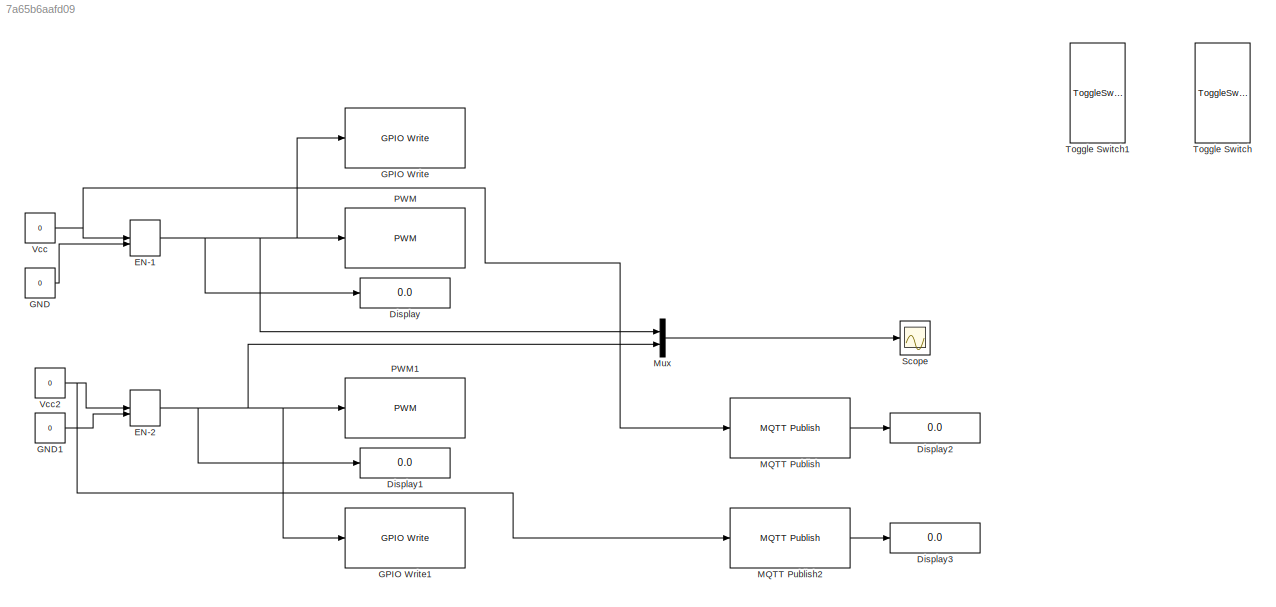
MODEL slx_7a65b6aafd09
KIND model
CONFIG AbsTol = auto
CONFIG EnableMultiTasking = on
CONFIG FixedStep = 0.02
CONFIG MaxStep = auto
CONFIG MinStep = auto
CONFIG RelTol = 1e-3
CONFIG SampleTimeConstraint = Unconstrained
CONFIG Solver = FixedStepAuto
CONFIG SolverName = FixedStepAuto
CONFIG StartTime = 0.0
CONFIG StopTime = inf
BLOCK [Display] Display
  Decimation = 1
  Ports = [1]
BLOCK [Display] Display1
  Decimation = 1
  Ports = [1]
BLOCK [Display] Display2
  Decimation = 1
  Format = decimal (Stored Integer)
  Ports = [1]
BLOCK [Display] Display3
  Decimation = 1
  Format = decimal (Stored Integer)
  Ports = [1]
BLOCK [ManualSwitch] EN-1
BLOCK [ManualSwitch] EN-2
BLOCK [Constant] GND
  Value = 0
BLOCK [Constant] GND1 
  Value = 0
BLOCK [Reference] GPIO Write  REF=embdlinuxlib/GPIO Write
  Ports = [1]
  SourceBlock = embdlinuxlib/GPIO Write
  SourceProductBaseCode = SC_BEAGLEBONE_BLUE
  SourceProductName = Simulink Coder Support Package for BeagleBone Blue Hardware
  SourceType = GPIO Write
BLOCK [Reference] GPIO Write1  REF=embdlinuxlib/GPIO Write
  Ports = [1]
  SourceBlock = embdlinuxlib/GPIO Write
  SourceProductBaseCode = SC_BEAGLEBONE_BLUE
  SourceProductName = Simulink Coder Support Package for BeagleBone Blue Hardware
  SourceType = GPIO Write
BLOCK [Reference] MQTT Publish  REF=embdlinuxlib/MQTT Publish
  Ports = [1, 1]
  SourceBlock = embdlinuxlib/MQTT Publish
  SourceProductBaseCode = SC_BEAGLEBONE_BLUE
  SourceProductName = Simulink Coder Support Package for BeagleBone Blue Hardware
  SourceType = codertarget.linux.blocks.MQTTPublish
BLOCK [Reference] MQTT Publish2  REF=embdlinuxlib/MQTT Publish
  Ports = [1, 1]
  SourceBlock = embdlinuxlib/MQTT Publish
  SourceProductBaseCode = SC_BEAGLEBONE_BLUE
  SourceProductName = Simulink Coder Support Package for BeagleBone Blue Hardware
  SourceType = codertarget.linux.blocks.MQTTPublish
BLOCK [Mux] Mux
  DisplayOption = bar
  Inputs = 2
  Ports = [2, 1]
BLOCK [Reference] PWM  REF=raspberrypilib/PWM
  Ports = [1]
  SourceBlock = raspberrypilib/PWM
  SourceProductBaseCode = RASPPI
  SourceProductName = Simulink Support Package for Raspberry Pi Hardware
  SourceType = raspi.internal.PWMBlock
BLOCK [Reference] PWM1  REF=raspberrypilib/PWM
  Ports = [1]
  SourceBlock = raspberrypilib/PWM
  SourceProductBaseCode = RASPPI
  SourceProductName = Simulink Support Package for Raspberry Pi Hardware
  SourceType = raspi.internal.PWMBlock
BLOCK [Scope] Scope
  Floating = off
  NumInputPorts = 1
  Ports = [1]
  ScopeSpecificationString = Simulink.scopes.TimeScopeBlockCfg('CurrentConfiguration', extmgr.ConfigurationSet(extmgr.Configuration('Core','General UI',true),extmgr.Configuration('Core','Source UI',true),extmgr.Configuration('Sources','WiredSimulink',true),extmgr.Configuration('Visuals','Time Domain',true,'SerializedDisplays',{struct('MinYLimReal','-5','MaxYLimReal','1.5','YLabelReal','','MinYLimMag','0.00000','MaxYLimMag','1...<+1559ch>
BLOCK [ToggleSwitchBlock] Toggle Switch
BLOCK [ToggleSwitchBlock] Toggle Switch1
BLOCK [Constant] Vcc
  OutDataTypeStr = uint8
  Value = 0
BLOCK [Constant] Vcc2
  OutDataTypeStr = uint8
  Value = 0
NET EN-1:1 -> Display:1, GPIO Write:1, Mux:1, PWM:1
NET EN-2:1 -> Display1:1, GPIO Write1:1, Mux:2, PWM1:1
LINE GND1 :1 -> EN-2:2
LINE GND:1 -> EN-1:2
LINE MQTT Publish2:1 -> Display3:1
LINE MQTT Publish:1 -> Display2:1
LINE Mux:1 -> Scope:1
NET Vcc2:1 -> EN-2:1, MQTT Publish2:1
NET Vcc:1 -> EN-1:1, MQTT Publish:1
note: NET lines group one-source signal fan-out (src -> all destinations, sorted); 1:1 wires keep LINE
